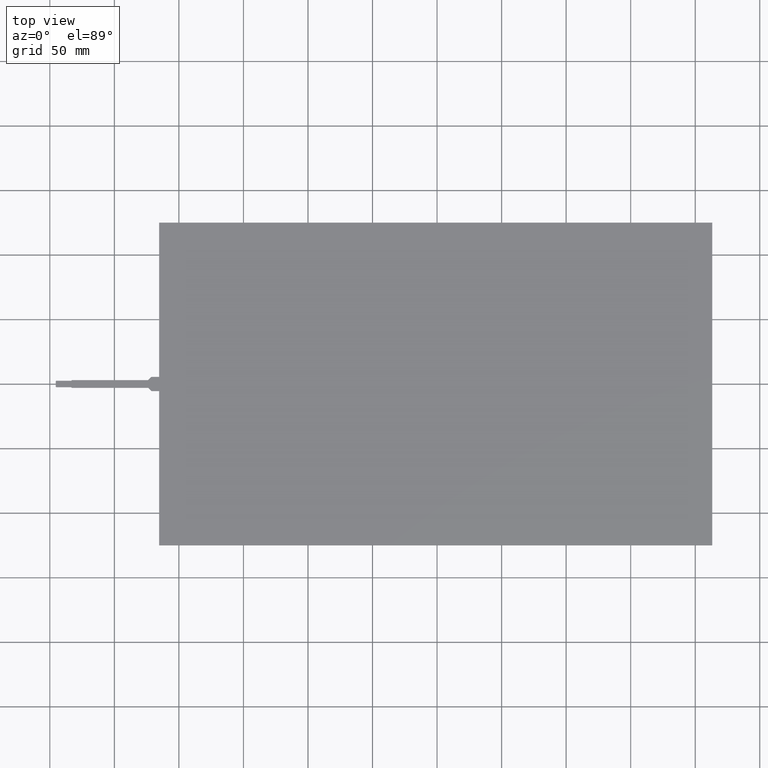
[diagram: clean part render]
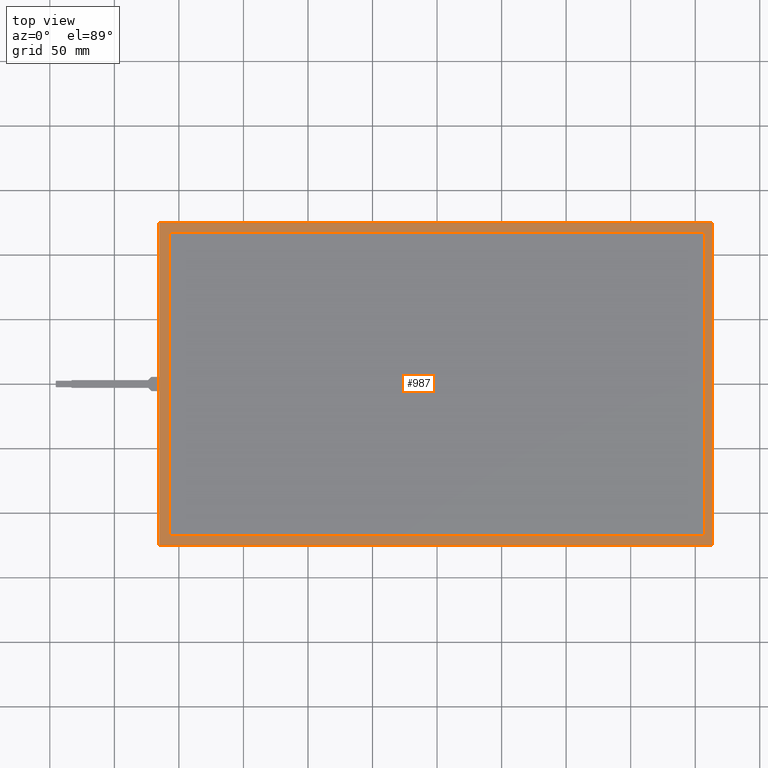
[diagram: same view with one face highlighted and labeled with its STEP entity id]
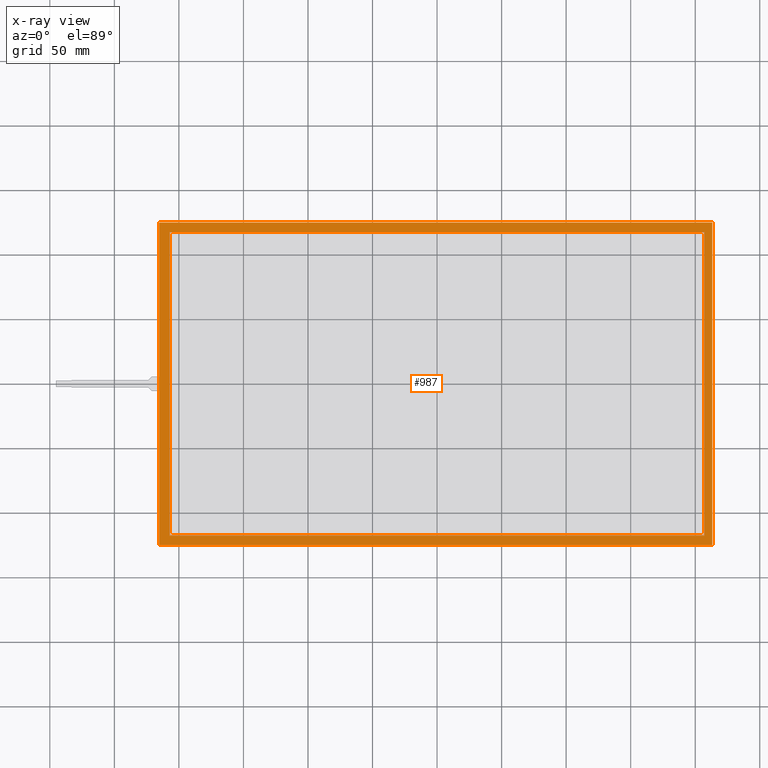
[diagram: x-ray of the same camera — body ghosted, the highlighted face saturated]
A machine part, top view. The second image highlights one B-rep face of the part: STEP entity #987.
The next image is the same camera in x-ray: the body ghosted, the highlighted face saturated — about 0% of this face is hidden behind the body in this view.
In plain terms, the highlighted planar face has unit normal (0, 0, 1).
Its self-contained STEP definition (entity closure, byte-faithful):
#67=FACE_BOUND('',#131,.T.);
#77=FACE_OUTER_BOUND('',#130,.T.);
#130=EDGE_LOOP('',(#696,#697,#698,#699));
#131=EDGE_LOOP('',(#700,#701,#702,#703));
#186=LINE('',#1399,#312);
#190=LINE('',#1407,#316);
#193=LINE('',#1413,#319);
#196=LINE('',#1418,#322);
#198=LINE('',#1424,#324);
#199=LINE('',#1426,#325);
#200=LINE('',#1428,#326);
#201=LINE('',#1429,#327);
#312=VECTOR('',#1139,10.);
#316=VECTOR('',#1145,10.);
#319=VECTOR('',#1150,10.);
#322=VECTOR('',#1155,10.);
#324=VECTOR('',#1161,10.);
#325=VECTOR('',#1162,10.);
#326=VECTOR('',#1163,10.);
#327=VECTOR('',#1164,10.);
#434=VERTEX_POINT('',#1397);
#435=VERTEX_POINT('',#1398);
#438=VERTEX_POINT('',#1406);
#440=VERTEX_POINT('',#1412);
#442=VERTEX_POINT('',#1422);
#443=VERTEX_POINT('',#1423);
#444=VERTEX_POINT('',#1425);
#445=VERTEX_POINT('',#1427);
#530=EDGE_CURVE('',#434,#435,#186,.T.);
#534=EDGE_CURVE('',#438,#434,#190,.T.);
#537=EDGE_CURVE('',#440,#438,#193,.T.);
#540=EDGE_CURVE('',#435,#440,#196,.T.);
#542=EDGE_CURVE('',#442,#443,#198,.T.);
#543=EDGE_CURVE('',#443,#444,#199,.T.);
#544=EDGE_CURVE('',#444,#445,#200,.T.);
#545=EDGE_CURVE('',#445,#442,#201,.T.);
#696=ORIENTED_EDGE('',*,*,#542,.T.);
#697=ORIENTED_EDGE('',*,*,#543,.T.);
#698=ORIENTED_EDGE('',*,*,#544,.T.);
#699=ORIENTED_EDGE('',*,*,#545,.T.);
#700=ORIENTED_EDGE('',*,*,#530,.T.);
#701=ORIENTED_EDGE('',*,*,#540,.T.);
#702=ORIENTED_EDGE('',*,*,#537,.T.);
#703=ORIENTED_EDGE('',*,*,#534,.T.);
#941=PLANE('',#1060);
#987=ADVANCED_FACE('',(#77,#67),#941,.T.);
#1060=AXIS2_PLACEMENT_3D('',#1421,#1159,#1160);
#1139=DIRECTION('',(0.,1.,0.));
#1145=DIRECTION('',(-1.,-8.57522007917089E-17,0.));
#1150=DIRECTION('',(0.,-1.,0.));
#1155=DIRECTION('',(1.,0.,0.));
#1159=DIRECTION('center_axis',(0.,0.,1.));
#1160=DIRECTION('ref_axis',(1.,0.,0.));
#1161=DIRECTION('',(-1.,0.,0.));
#1162=DIRECTION('',(0.,-1.,0.));
#1163=DIRECTION('',(1.,1.65820941834329E-16,0.));
#1164=DIRECTION('',(1.4210854715202E-16,1.,0.));
#1397=CARTESIAN_POINT('',(-207.15,-117.45,0.));
#1398=CARTESIAN_POINT('',(-207.15,117.45,0.));
#1399=CARTESIAN_POINT('',(-207.15,-58.725,0.));
#1406=CARTESIAN_POINT('',(207.15,-117.45,0.));
#1407=CARTESIAN_POINT('',(103.025,-117.45,0.));
#1412=CARTESIAN_POINT('',(207.15,117.45,0.));
#1413=CARTESIAN_POINT('',(207.15,58.725,0.));
#1418=CARTESIAN_POINT('',(-104.125,117.45,0.));
#1421=CARTESIAN_POINT('Origin',(-1.10000000000001,1.77635683940025E-14,
0.));
#1422=CARTESIAN_POINT('',(213.15,125.,0.));
#1423=CARTESIAN_POINT('',(-215.35,125.,0.));
#1424=CARTESIAN_POINT('',(213.15,125.,0.));
#1425=CARTESIAN_POINT('',(-215.35,-125.,0.));
#1426=CARTESIAN_POINT('',(-215.35,125.,0.));
#1427=CARTESIAN_POINT('',(213.15,-125.,0.));
#1428=CARTESIAN_POINT('',(-215.35,-125.,0.));
#1429=CARTESIAN_POINT('',(213.15,-125.,0.));